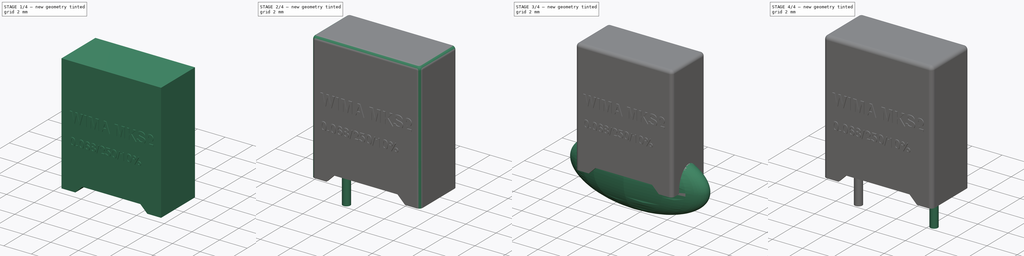
[diagram: build sequence overview — one tinted view per stage of 4, left to right]
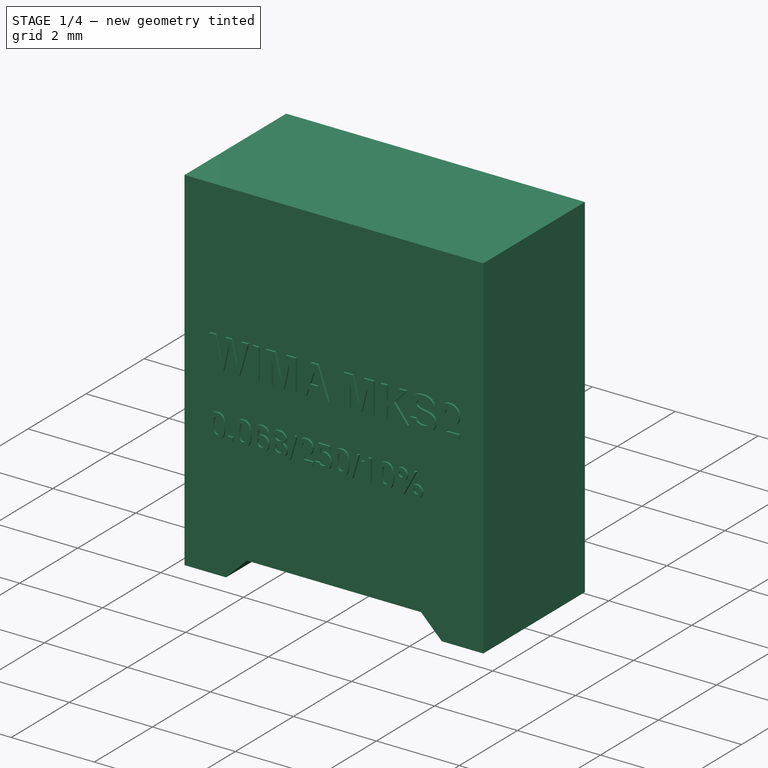
[diagram: stage 1 of 4 — iso view after this stage's code; geometry added in this stage tinted green]
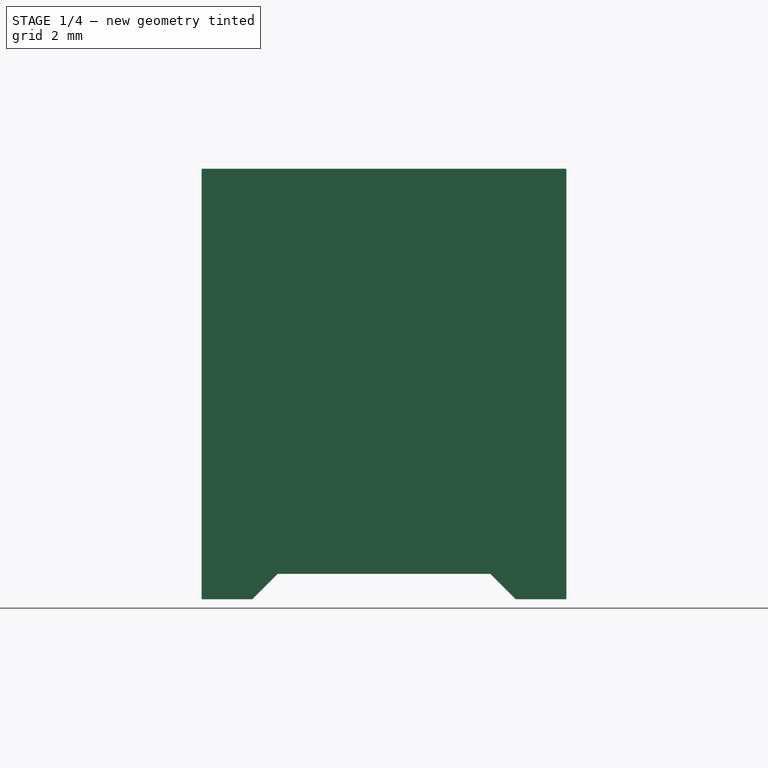
[diagram: stage 1 of 4 — front view after this stage's code; geometry added in this stage tinted green]
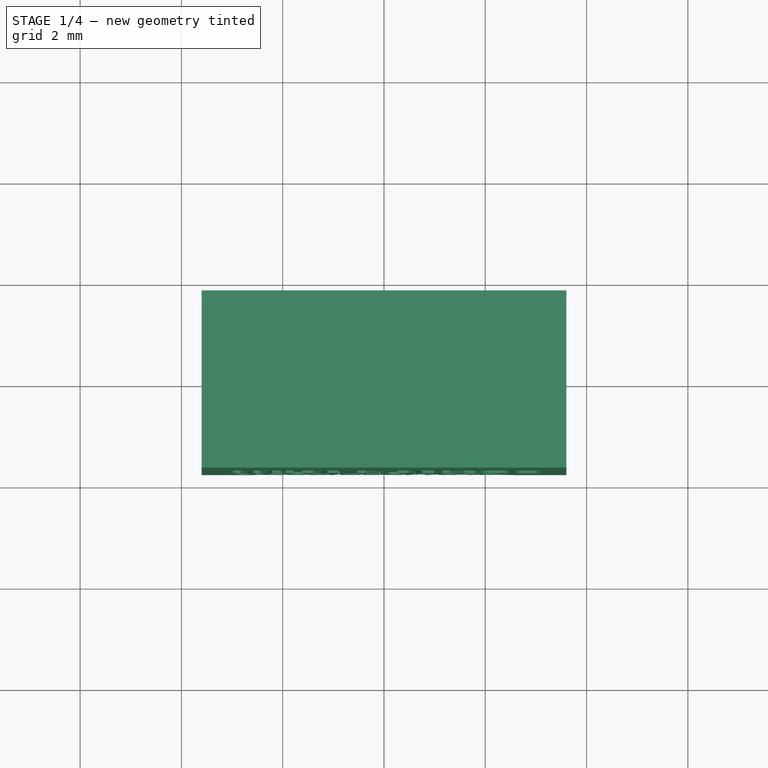
[diagram: stage 1 of 4 — top view after this stage's code; geometry added in this stage tinted green]
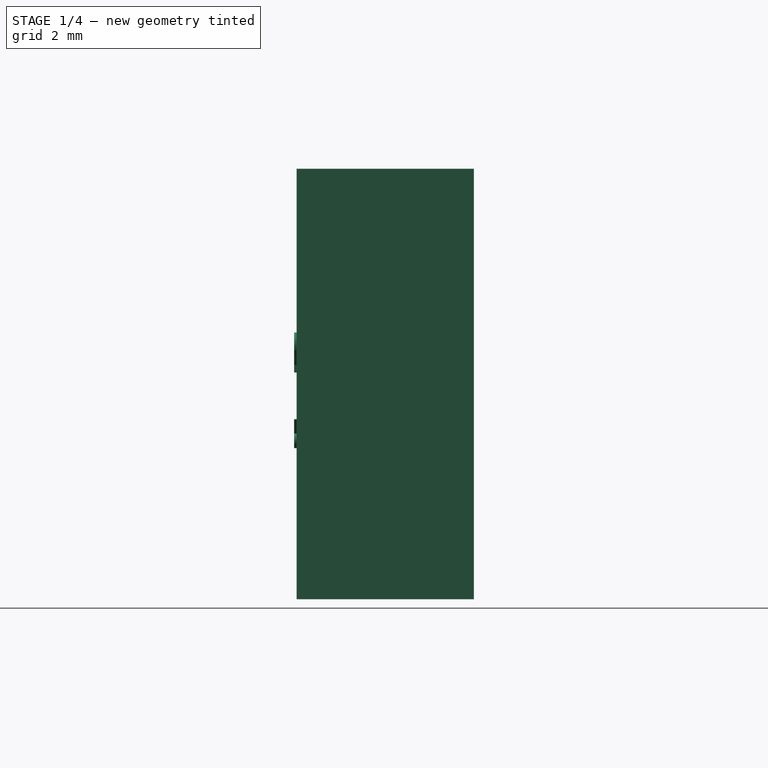
[diagram: stage 1 of 4 — right view after this stage's code; geometry added in this stage tinted green]
FCSTD DOCUMENT  (FreeCAD 0.19R16945 (Git))
Label: MKS2F026801C00KSSD
License: All rights reserved
LicenseURL: http://en.wikipedia.org/wiki/All_rights_reserved
objects: PartDesign::Body×5, Sketcher::SketchObject×3, PartDesign::Pad×3, Part::Part2DObjectPython×2, Part::Extrusion×2, Spreadsheet::Sheet×1, PartDesign::Thickness×1, PartDesign::AdditiveEllipsoid×1, PartDesign::Boolean×1, PartDesign::FeatureBase×1, PartDesign::Fillet×1, Part::MultiFuse×1
note: 25 computed .brp shape members not serialized (recipe doc carries the construction recipe); baked Part::Feature solids carry a one-line shape summary decoded from their .brp

FEATURE [Spreadsheet::Sheet] Spreadsheet
  cells = A2=d_W; B2(d_W)==3.5mm; C2=thickness of body; A3=d_H; B3(d_H)==8.5mm; C3=height of body; A4=d_L; B4(d_L)==7.2mm; C4=length of body; A5=d_P; B5(d_P)==5mm; C5=pitch; A7=d_fw; B7(d_fw)==1mm; C7=width of foot; A8=d_fh; B8(d_fh)==0.5mm; C8=height of foot; A9=d_fa; B9(d_fa)=45; C9=angle of foot; A10=d_ht; B10(d_ht)==0.2mm; C10=thicknesss of housing; A11=d_ec; B11(d_ec)=1.5; C11=not sure, maybe intended for ellipsoid radius; A13=d_ll; B13(d_ll)==1.8mm; C13=lead length; A14=d_ld; B14(d_ld)==0.5mm; C14=lead diameter
FEATURE [Sketcher::SketchObject] Sketch
  MapMode = 5
  Placement = pos=(0,0,0) rot=(1,0,0;1.5708rad)
  Support = -> [XZ_Plane]
  expr: Constraints[21] = Spreadsheet.d_fh
  expr: Constraints[20] = 90 + Spreadsheet.d_fa
  expr: Constraints[19] = Spreadsheet.d_fw
  expr: Constraints[18] = Spreadsheet.d_L
  expr: Constraints[17] = Spreadsheet.d_H
  sketch-geometry (8):
    g0: LineSegment StartX=2.1 StartY=0.5 StartZ=0 EndX=-2.1 EndY=0.5 EndZ=0
    g1: LineSegment StartX=-2.1 StartY=0.5 StartZ=0 EndX=-2.6 EndY=0 EndZ=0
    g2: LineSegment StartX=-2.6 StartY=0 StartZ=0 EndX=-3.6 EndY=0 EndZ=0
    g3: LineSegment StartX=-3.6 StartY=0 StartZ=0 EndX=-3.6 EndY=8.5 EndZ=0
    g4: LineSegment StartX=-3.6 StartY=8.5 StartZ=0 EndX=3.6 EndY=8.5 EndZ=0
    g5: LineSegment StartX=3.6 StartY=8.5 StartZ=0 EndX=3.6 EndY=0 EndZ=0
    g6: LineSegment StartX=3.6 StartY=0 StartZ=0 EndX=2.6 EndY=0 EndZ=0
    g7: LineSegment StartX=2.6 StartY=0 StartZ=0 EndX=2.1 EndY=0.5 EndZ=0
  constraints (22):
    c: Coincident(g0,g1)
    c: PointOnObject(g1,g-1)
    c: Coincident(g1,g2)
    c: PointOnObject(g2,g-1)
    c: Coincident(g2,g3)
    c: Vertical(g3)
    c: Coincident(g3,g4)
    c: Coincident(g4,g5)
    c: PointOnObject(g5,g-1)
    c: Vertical(g5)
    c: Coincident(g5,g6)
    c: PointOnObject(g6,g-1)
    c: Coincident(g6,g7)
    c: Coincident(g0,g7)
    c: Symmetric(g4,g3,g-2)
    c: Symmetric(g0,g0,g-2)
    c: Equal(g2,g6)
    c: DistanceY(g5,g5) = 8.5
    c: DistanceX(g3,g4) = 7.2
    c: DistanceX(g2,g1) = 1
    c: Angle(g1,g2) = 2.35619
    c: DistanceY(g2,g0) = 0.5
FEATURE [PartDesign::Pad] Pad
  Length = 3.5
  Length2 = 100
  Midplane = true
  Placement = pos=(0,0,0) rot=(1,0,0;1.5708rad)
  Profile = -> Sketch
  Type = 0
  expr: Length = Spreadsheet.d_W
FEATURE [PartDesign::Body] Body  label="Housing"
  Group = -> [Sketch,Pad,Thickness,Fillet]
  Origin = -> Origin
  Tip = -> Fillet
FEATURE [Part::Part2DObjectPython] ShapeString001  label="text2"  # Draft 2D object (typed FeaturePython)
  AttachmentOffset = pos=(-3,3,1.25) rot=(0,0,1;0rad)
  FontFile = <userpath>/Desktop/GitHub/freecad-projects/00-fonts/FreeSansBold.ttf
  MapMode = 5
  Placement = pos=(-3,-1.75,3) rot=(1,0,0;1.5708rad)
  Size = 0.3
  String = 0.068/250/10%
  Tracking = 0
  expr: Placement.Base.y = -Spreadsheet.d_W / 2
FEATURE [Part::Part2DObjectPython] ShapeString  label="text1"  # Draft 2D object (typed FeaturePython)
  AttachmentOffset = pos=(-3,4.5,1.75) rot=(0,1,0;0rad)
  FontFile = <userpath>/Desktop/GitHub/freecad-projects/00-fonts/FreeSansBold.ttf
  MapMode = 5
  Placement = pos=(-3,-1.75,4.5) rot=(1,0,0;1.5708rad)
  Size = 0.4
  String = WIMA MKS2
  Tracking = 0
  expr: Placement.Base.y = -Spreadsheet.d_W / 2
  expr: AttachmentOffset.Base.z = Spreadsheet.d_W / 2
FEATURE [Part::Extrusion] Extrude  label="Text-Rating"
  Base = -> ShapeString001
  Dir = (0,-1,2e-16)
  DirMode = 2
  FaceMakerClass = Part::FaceMakerBullseye
  LengthFwd = 0.05
  LengthRev = 0
  Solid = false
  Symmetric = false
FEATURE [Part::Extrusion] Extrude001  label="Text-WIMA"
  Base = -> ShapeString
  Dir = (0,-1,2e-16)
  DirMode = 2
  FaceMakerClass = Part::FaceMakerBullseye
  LengthFwd = 0.05
  LengthRev = 0
  Solid = false
  Symmetric = false
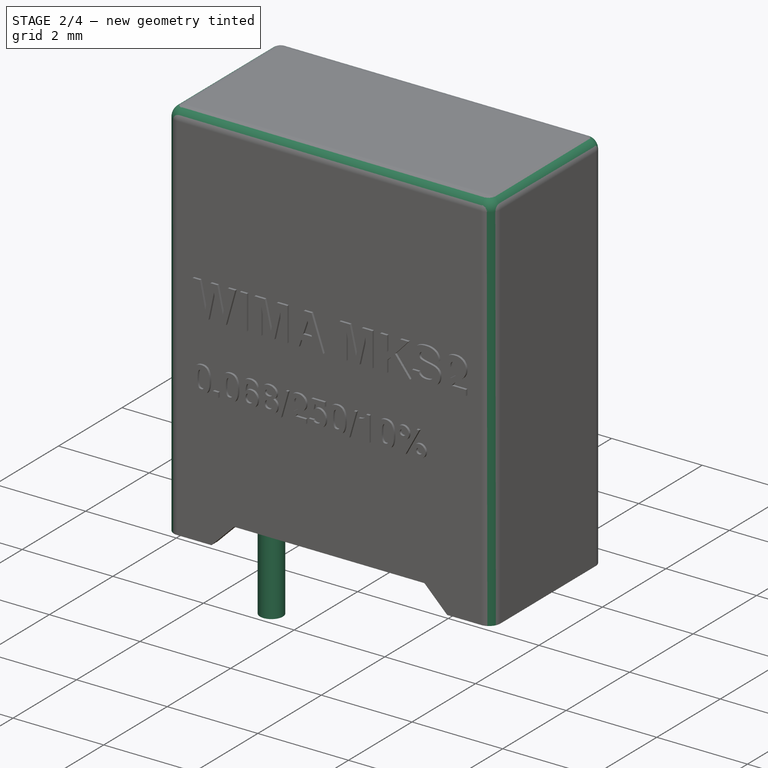
[diagram: stage 2 of 4 — iso view after this stage's code; geometry added in this stage tinted green]
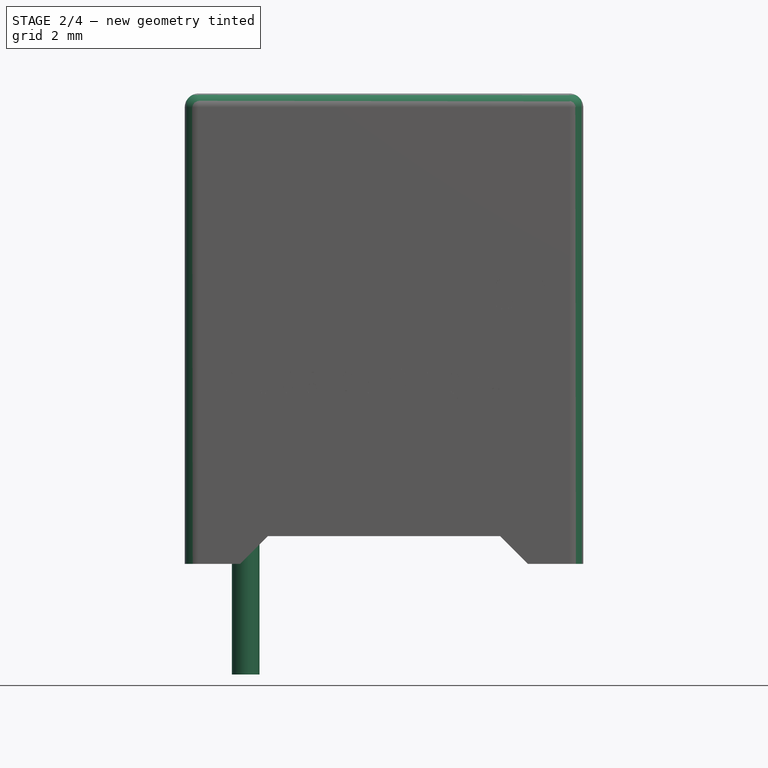
[diagram: stage 2 of 4 — front view after this stage's code; geometry added in this stage tinted green]
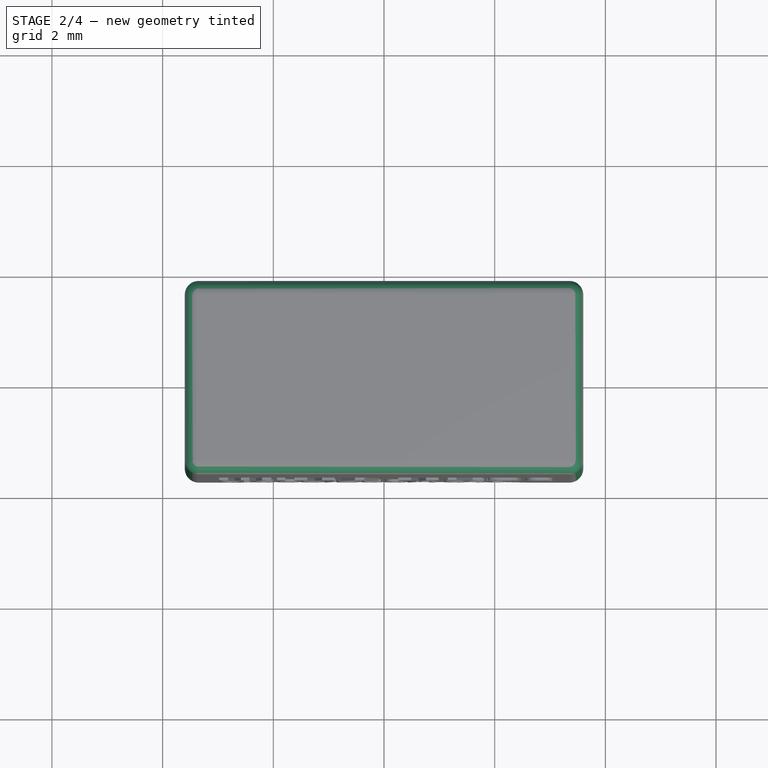
[diagram: stage 2 of 4 — top view after this stage's code; geometry added in this stage tinted green]
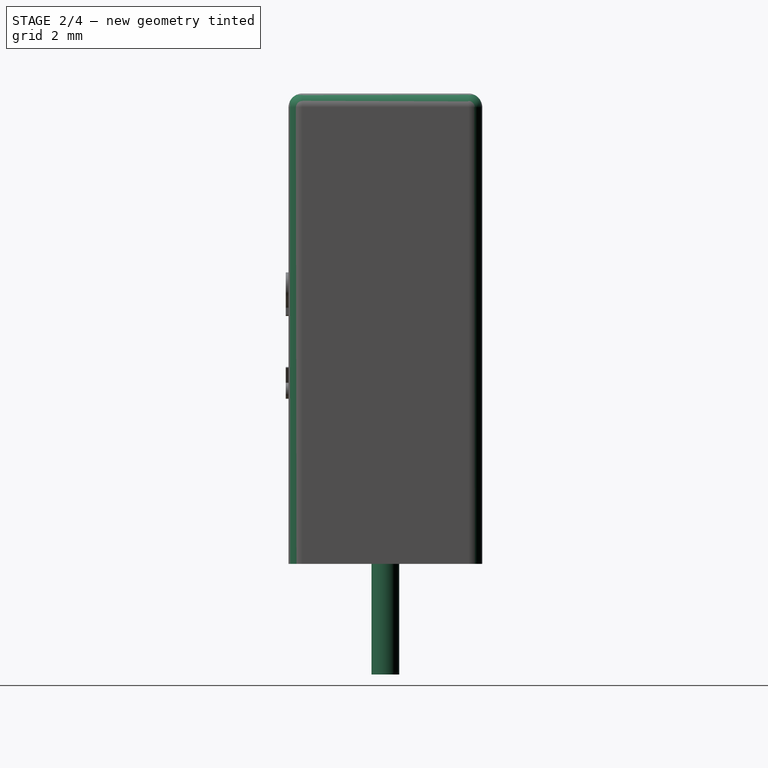
[diagram: stage 2 of 4 — right view after this stage's code; geometry added in this stage tinted green]
FEATURE [PartDesign::Thickness] Thickness
  Base = -> Pad [Face3,Face2,Face1,Face8,Face7]
  BaseFeature = -> Pad
  Join = 0
  Mode = 0
  Reversed = true
  Value = 0.2
  expr: Value = Spreadsheet.d_ht
FEATURE [PartDesign::Body] Body001  label="Potting Compound"
  Group = -> [Sketch001,Pad001,Boolean]
  Origin = -> Origin001
  Tip = -> Boolean
FEATURE [Sketcher::SketchObject] Sketch002
  MapMode = 5
  Support = -> [XY_Plane003]
  expr: Constraints[2] = Spreadsheet.d_P / 2
  expr: Constraints[1] = Spreadsheet.d_ld / 2
  sketch-geometry (1):
    g0: Circle CenterX=-2.5 CenterY=0 CenterZ=0 NormalX=0 NormalY=0 NormalZ=1 AngleXU=0 Radius=0.25
  constraints (3):
    c: PointOnObject(g0,g-1)
    c: Radius(g0) = 0.25
    c: DistanceX(g0,g-1) = 2.5
FEATURE [PartDesign::Pad] Pad002
  Length = 1.8
  Length2 = 2
  Profile = -> Sketch002
  Type = 4
  expr: Length = Spreadsheet.d_ll
FEATURE [PartDesign::Body] Body004  label="LeadClone"
  BaseFeature = -> Body003
  Group = -> [Clone]
  Origin = -> Origin004
  Placement = pos=(0,0,0) rot=(0,0,1;3.14159rad)
  Tip = -> Clone
FEATURE [PartDesign::Fillet] Fillet
  Base = -> Thickness [Edge7,Edge6,Edge2,Edge5,Edge10,Edge4,Edge3,Edge9]
  BaseFeature = -> Thickness
  Radius = 0.25
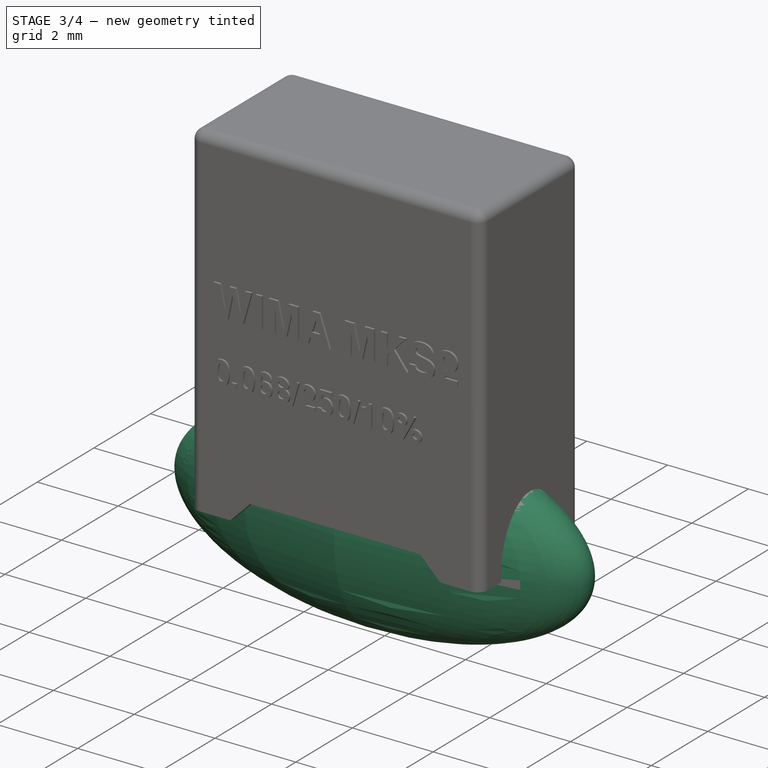
[diagram: stage 3 of 4 — iso view after this stage's code; geometry added in this stage tinted green]
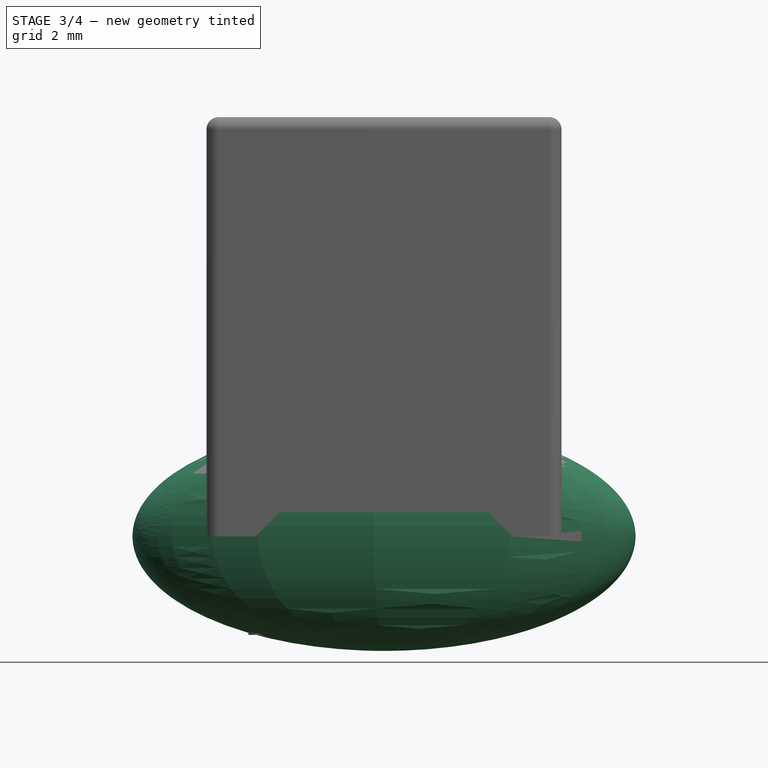
[diagram: stage 3 of 4 — front view after this stage's code; geometry added in this stage tinted green]
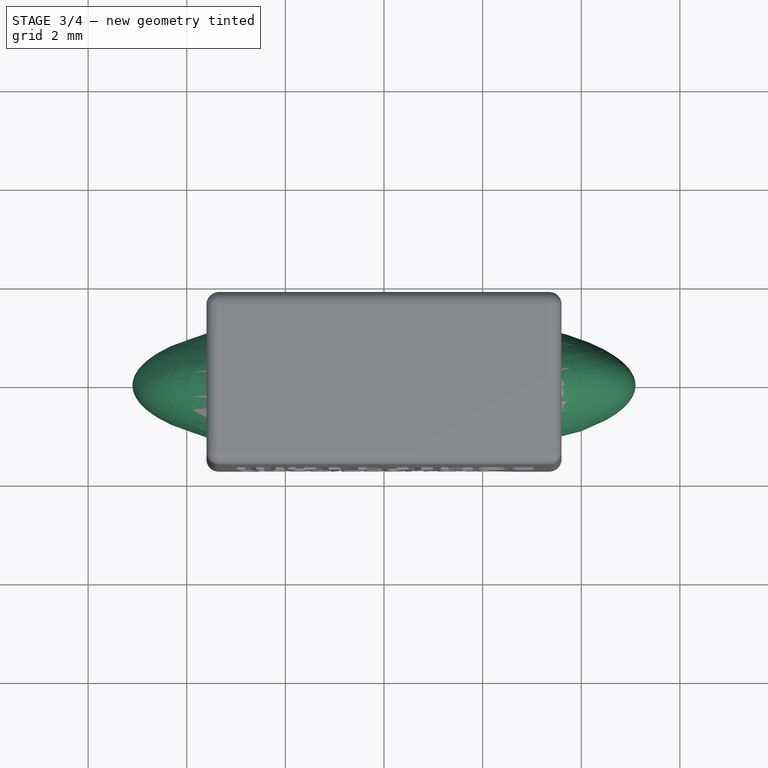
[diagram: stage 3 of 4 — top view after this stage's code; geometry added in this stage tinted green]
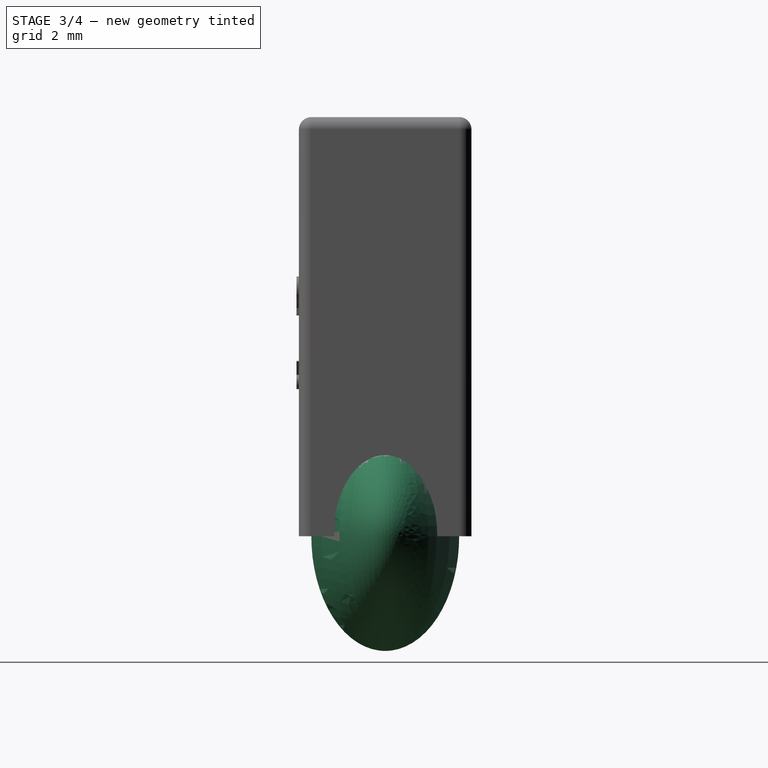
[diagram: stage 3 of 4 — right view after this stage's code; geometry added in this stage tinted green]
FEATURE [PartDesign::AdditiveEllipsoid] Ellipsoid
  Angle1 = -90
  Angle2 = 90
  Angle3 = 360
  AttacherType = Attacher::AttachEngine3D
  Radius1 = 2.325
  Radius2 = 5.1
  Radius3 = 1.5
  expr: Radius1 = (Spreadsheet.d_W - 2 * Spreadsheet.d_ht) / 2 * 1.5
  expr: Radius2 = (Spreadsheet.d_L - 2 * Spreadsheet.d_ht) / 2 * 1.5
FEATURE [PartDesign::Body] Body003  label="Lead"
  Group = -> [Sketch002,Pad002]
  Origin = -> Origin003
  Tip = -> Pad002
FEATURE [PartDesign::FeatureBase] Clone
  BaseFeature = -> Body003
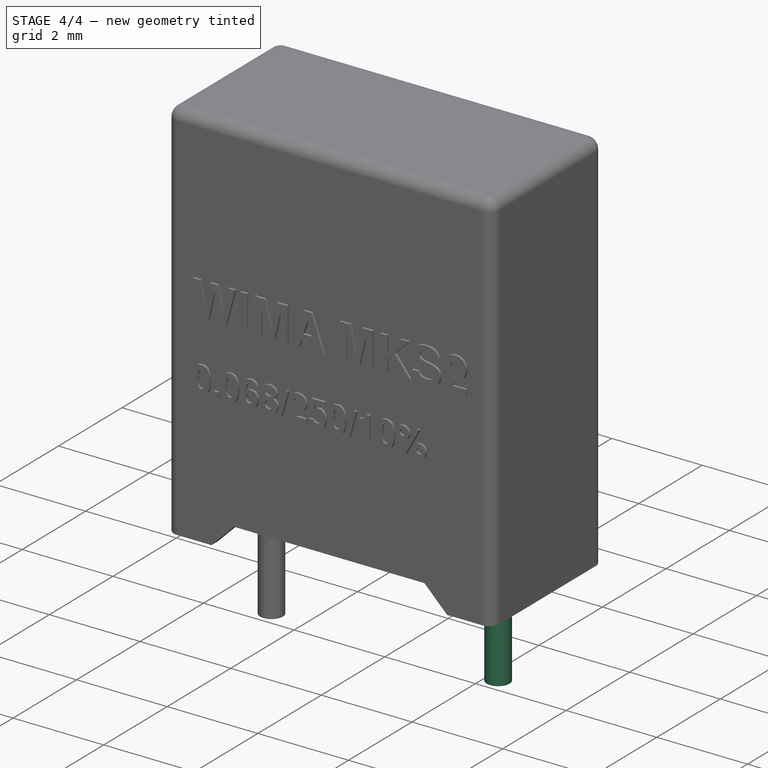
[diagram: stage 4 of 4 — iso view after this stage's code; geometry added in this stage tinted green]
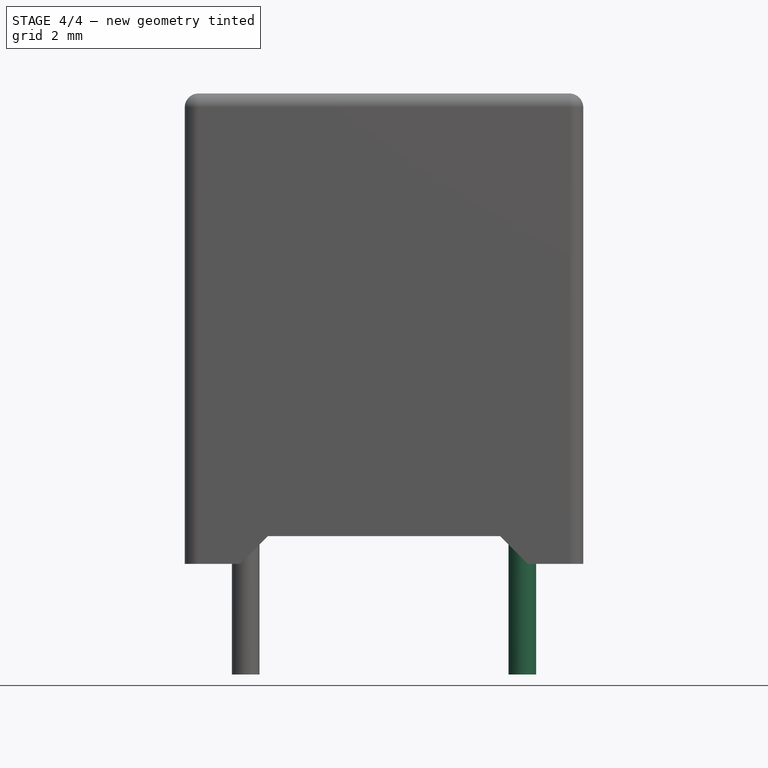
[diagram: stage 4 of 4 — front view after this stage's code; geometry added in this stage tinted green]
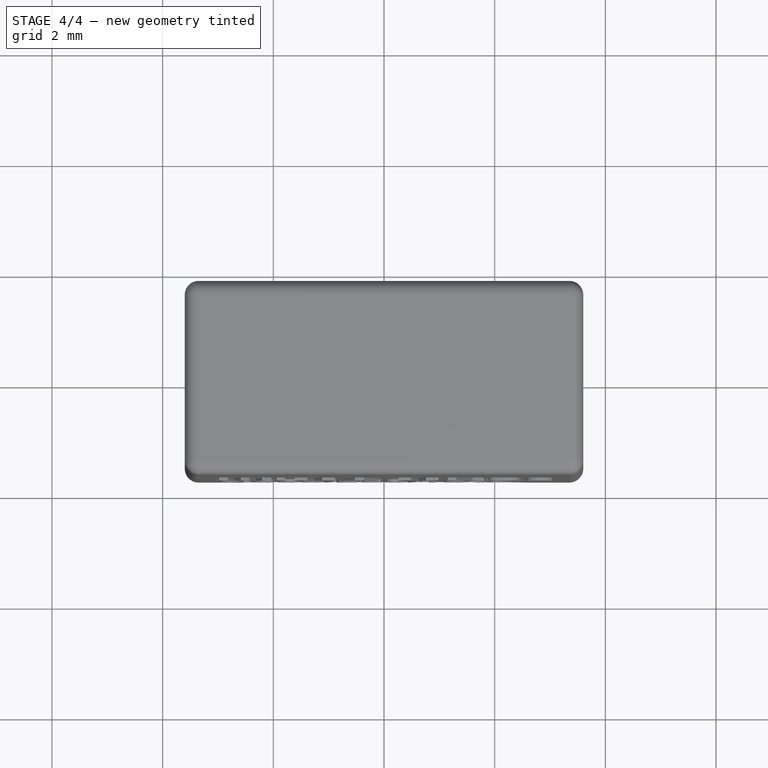
[diagram: stage 4 of 4 — top view after this stage's code; geometry added in this stage tinted green]
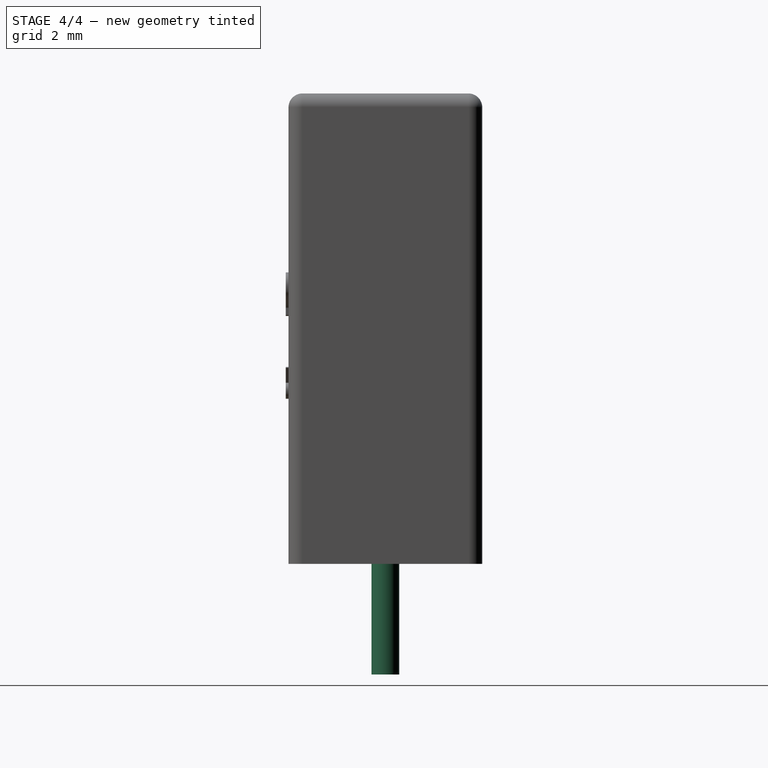
[diagram: stage 4 of 4 — right view after this stage's code; geometry added in this stage tinted green]
FEATURE [Sketcher::SketchObject] Sketch001
  AttachmentOffset = pos=(0,0,0.5) rot=(0,0,1;0rad)
  MapMode = 5
  Placement = pos=(0,0,0.5) rot=(0,0,1;0rad)
  Support = -> [XY_Plane001]
  expr: AttachmentOffset.Base.z = Spreadsheet.d_fh
  expr: Constraints[10] = Spreadsheet.d_W - 2 * Spreadsheet.d_ht
  expr: Constraints[9] = Spreadsheet.d_L - 2 * Spreadsheet.d_ht
  sketch-geometry (4):
    g0: LineSegment StartX=-3.4 StartY=-1.55 StartZ=0 EndX=3.4 EndY=-1.55 EndZ=0
    g1: LineSegment StartX=3.4 StartY=-1.55 StartZ=0 EndX=3.4 EndY=1.55 EndZ=0
    g2: LineSegment StartX=3.4 StartY=1.55 StartZ=0 EndX=-3.4 EndY=1.55 EndZ=0
    g3: LineSegment StartX=-3.4 StartY=1.55 StartZ=0 EndX=-3.4 EndY=-1.55 EndZ=0
  constraints (11):
    c: Coincident(g0,g1)
    c: Coincident(g1,g2)
    c: Coincident(g2,g3)
    c: Coincident(g3,g0)
    c: Horizontal(g0)
    c: Horizontal(g2)
    c: Vertical(g1)
    c: Vertical(g3)
    c: Symmetric(g1,g0,g-1)
    c: DistanceX(g2,g2) = 6.8
    c: DistanceY(g3,g3) = 3.1
FEATURE [PartDesign::Pad] Pad001
  Length = 7.8
  Length2 = 100
  Profile = -> Sketch001
  Type = 0
  expr: Length = Spreadsheet.d_H - Spreadsheet.d_ht - Spreadsheet.d_fh
FEATURE [PartDesign::Body] Body002
  Group = -> [Ellipsoid]
  Origin = -> Origin002
  Placement = pos=(0,0,0) rot=(1,0,0;1.5708rad)
  Tip = -> Ellipsoid
FEATURE [PartDesign::Boolean] Boolean
  BaseFeature = -> Pad001
  Group = -> [Body002]
  Type = 1
FEATURE [Part::MultiFuse] Fusion  label="MKS2F026801C00KSSD"
  Shapes = -> [Body,Extrude001,Body003,Body001,Body004,Extrude]
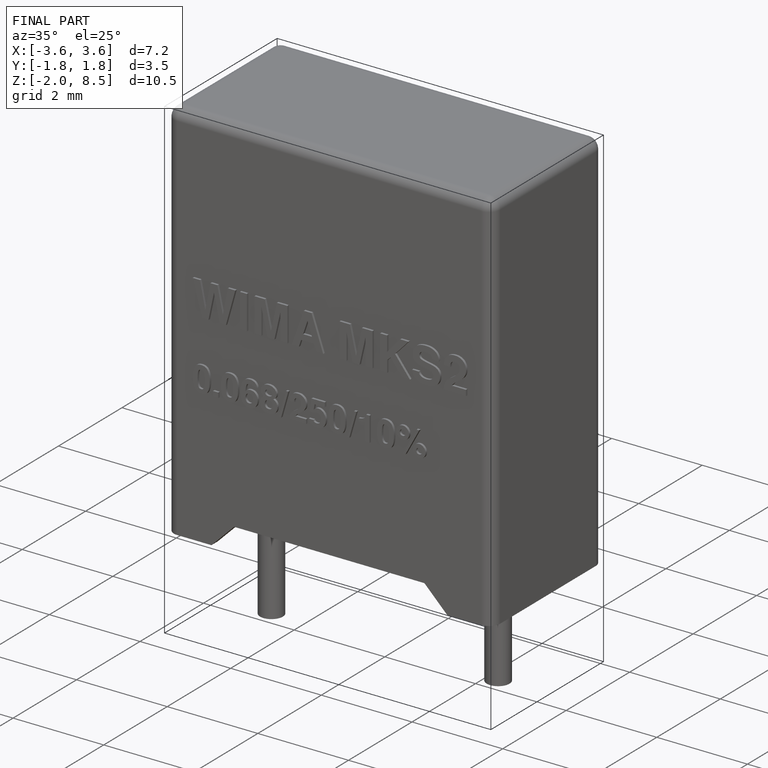
[diagram: finished part — iso view with bounding-box wireframe]
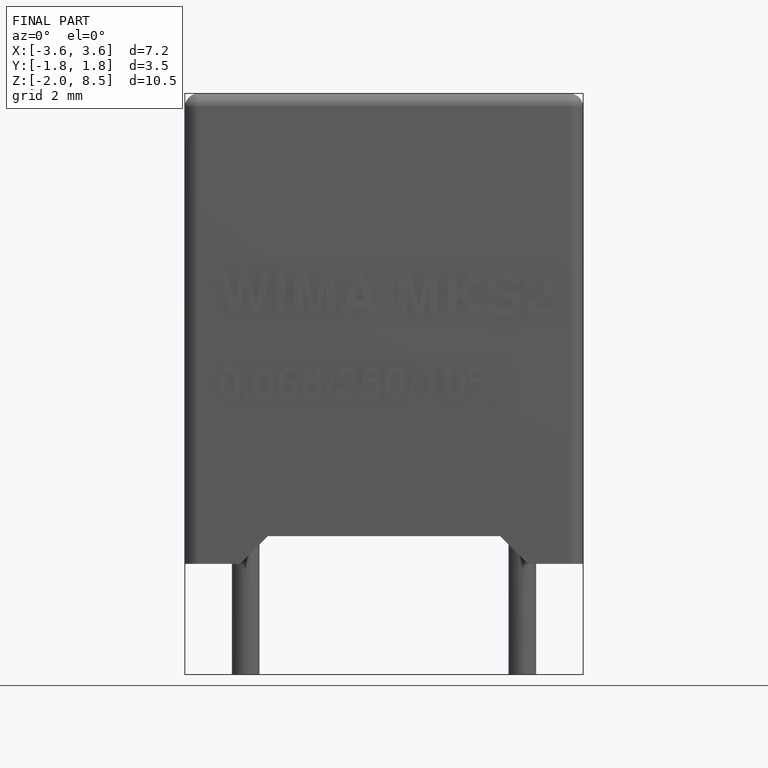
[diagram: finished part — front view with bounding-box wireframe]
